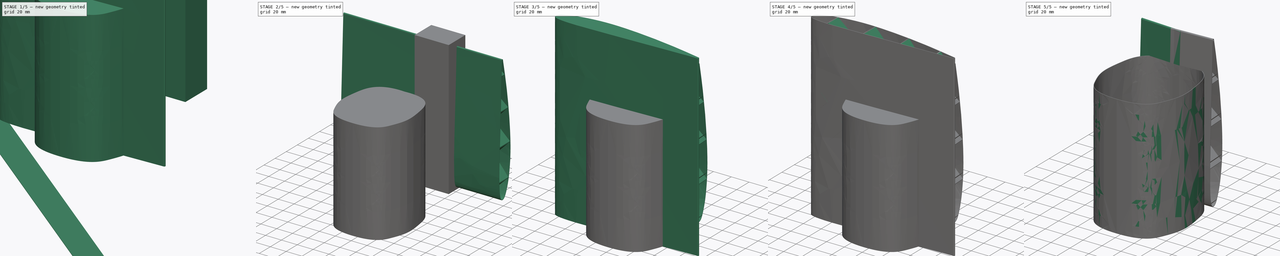
[diagram: build sequence overview — one tinted view per stage of 5, left to right]
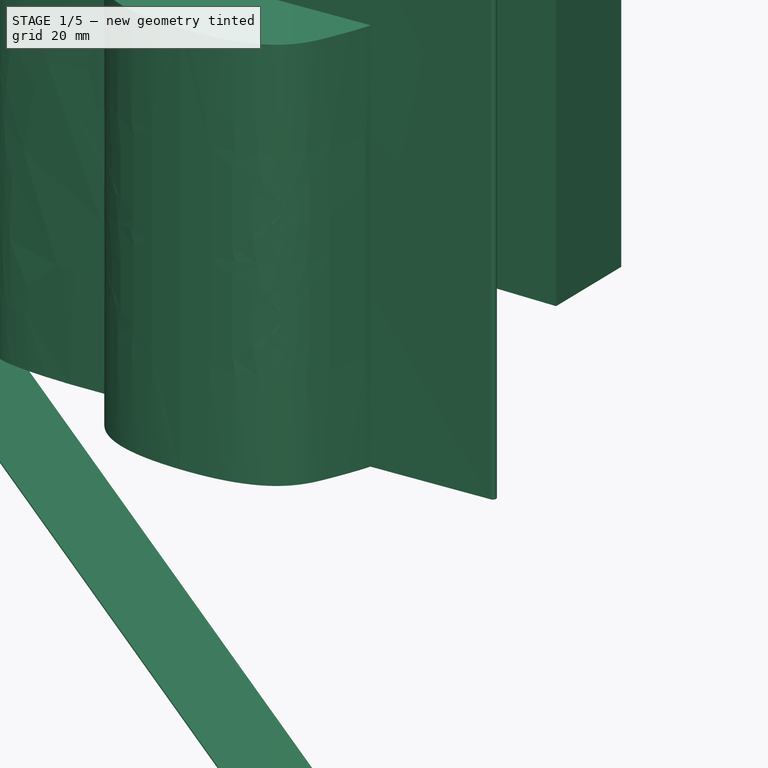
[diagram: stage 1 of 5 — iso view after this stage's code; geometry added in this stage tinted green]
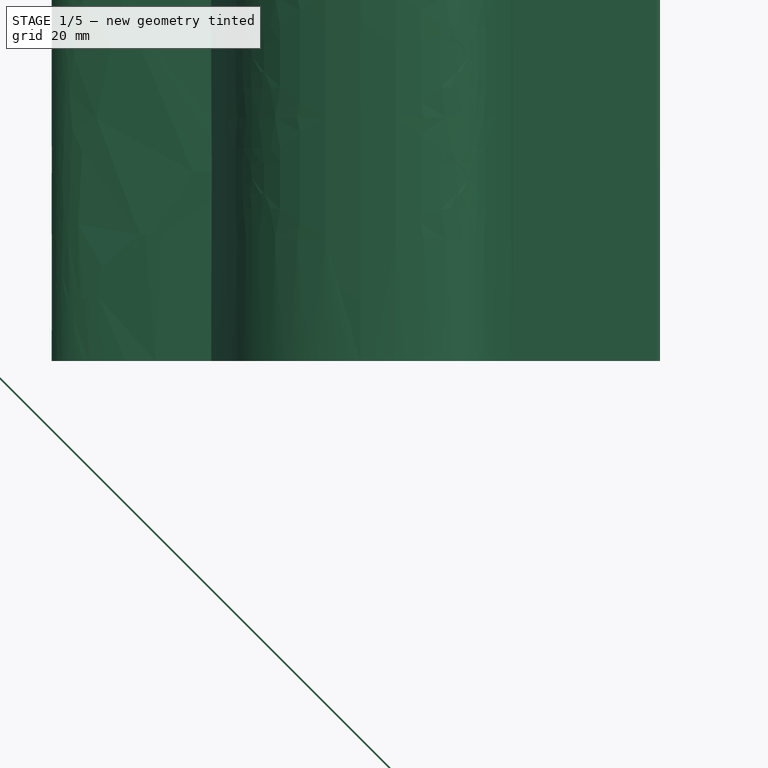
[diagram: stage 1 of 5 — front view after this stage's code; geometry added in this stage tinted green]
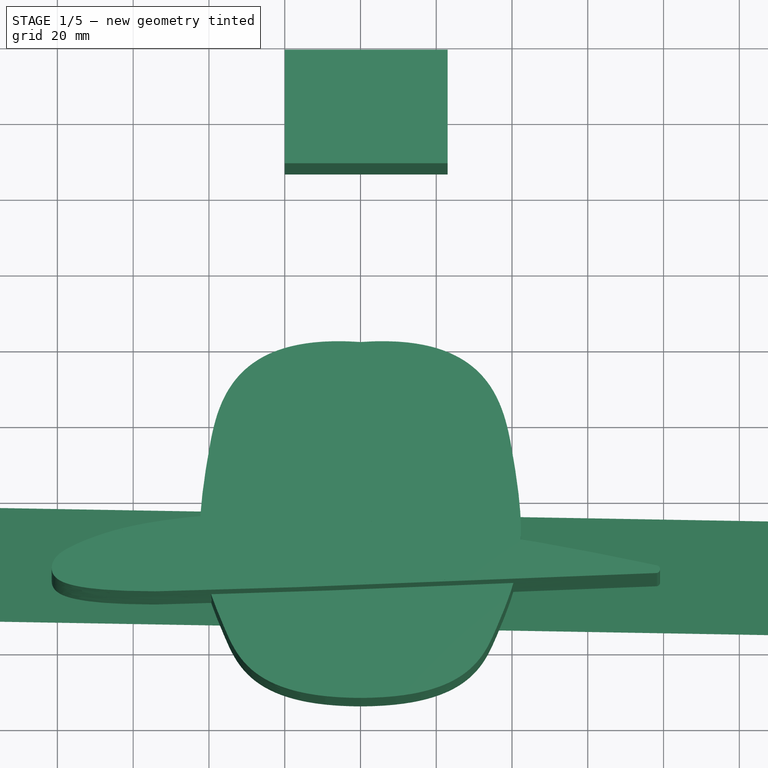
[diagram: stage 1 of 5 — top view after this stage's code; geometry added in this stage tinted green]
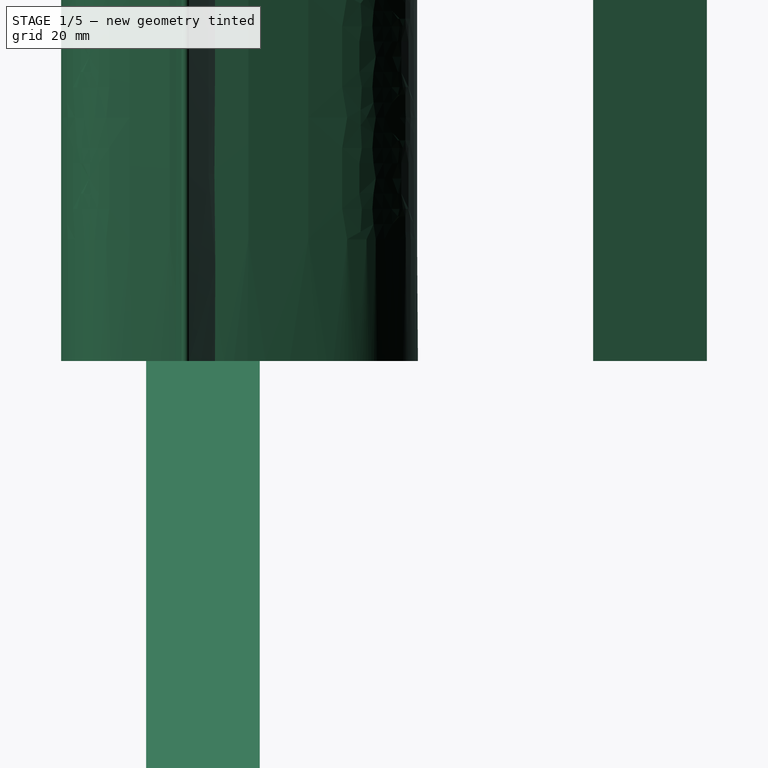
[diagram: stage 1 of 5 — right view after this stage's code; geometry added in this stage tinted green]
FCSTD DOCUMENT  (FreeCAD 0.21R33668 +26 (Git))
Label: gondole
License: All rights reserved
LicenseURL: http://en.wikipedia.org/wiki/All_rights_reserved
objects: Sketcher::SketchObject×9, PartDesign::Pad×9, PartDesign::Body×7, Part::Box×6, Part::FeaturePython×6, Part::MultiCommon×6, Part::MultiFuse×5, PartDesign::Thickness×3, Part::Cut×2, Image::ImagePlane×1
note: 59 computed .brp shape members not serialized (recipe doc carries the construction recipe); baked Part::Feature solids carry a one-line shape summary decoded from their .brp

FEATURE [PartDesign::Body] Body
  Group = -> [Sketch,Pad,Thickness]
  Origin = -> Origin
  Tip = -> Thickness
FEATURE [Part::Box] Box  label="Cube"
  AttacherType = Attacher::AttachEngine3D
  Height = 0.4
  Length = 300
  Placement = pos=(-100,-15,0) rot=(0,1,0;0.785398rad)
  Width = 30
FEATURE [Sketcher::SketchObject] Sketch001
  FullyConstrained = false
  MapMode = 5
  Support = -> [XY_Plane001]
  sketch-geometry (30):
    g0: ArcOfCircle CenterX=78.0455 CenterY=-4.69261 CenterZ=0 NormalX=0 NormalY=0 NormalZ=1 AngleXU=0 Radius=0.633228 StartAngle=4.68069 EndAngle=7.80443
    g1-g15: Circle x15 (B-spline internal-alignment scaffolding for g16; pole/knot coordinates omitted)
    g16: BSplineCurve PolesCount=15 KnotsCount=13 Degree=3 IsPeriodic=0
    g17-g29: GeomPoint x13 (B-spline internal-alignment scaffolding for g16; pole/knot coordinates omitted)
  constraints (6):
    c: Weight(g1) = 1
    c: Coincident(g16,g0)
    c: Equal(g1, g2-g15) x14
    c: Coincident(g16,g0)
    c: InternalAlignment(g1-g15 -> g16) x15
    c: InternalAlignment(g17-g29 -> g16) x13
FEATURE [PartDesign::Pad] Pad001
  Direction = (0,0,1)
  Length = 200
  Length2 = 10
  Profile = -> Sketch001
  Type = 0
FEATURE [Sketcher::SketchObject] Sketch002
  FullyConstrained = false
  MapMode = 5
  Support = -> [XY_Plane002]
  sketch-geometry (30):
    g0: ArcOfCircle CenterX=78.0455 CenterY=-4.69261 CenterZ=0 NormalX=0 NormalY=0 NormalZ=1 AngleXU=0 Radius=0.633228 StartAngle=4.68069 EndAngle=7.80443
    g1-g15: Circle x15 (B-spline internal-alignment scaffolding for g16; pole/knot coordinates omitted)
    g16: BSplineCurve PolesCount=15 KnotsCount=13 Degree=3 IsPeriodic=0
    g17-g29: GeomPoint x13 (B-spline internal-alignment scaffolding for g16; pole/knot coordinates omitted)
  constraints (6):
    c: Weight(g1) = 1
    c: Coincident(g16,g0)
    c: Equal(g1, g2-g15) x14
    c: Coincident(g16,g0)
    c: InternalAlignment(g1-g15 -> g16) x15
    c: InternalAlignment(g17-g29 -> g16) x13
FEATURE [PartDesign::Pad] Pad002
  Direction = (0,0,1)
  Length = 200
  Length2 = 10
  Profile = -> Sketch002
  Type = 0
FEATURE [Sketcher::SketchObject] Sketch003
  FullyConstrained = false
  MapMode = 5
  Support = -> [XY_Plane003]
  sketch-geometry (30):
    g0: ArcOfCircle CenterX=78.0455 CenterY=-4.69261 CenterZ=0 NormalX=0 NormalY=0 NormalZ=1 AngleXU=0 Radius=0.633228 StartAngle=4.68069 EndAngle=7.80443
    g1-g15: Circle x15 (B-spline internal-alignment scaffolding for g16; pole/knot coordinates omitted)
    g16: BSplineCurve PolesCount=15 KnotsCount=13 Degree=3 IsPeriodic=0
    g17-g29: GeomPoint x13 (B-spline internal-alignment scaffolding for g16; pole/knot coordinates omitted)
  constraints (6):
    c: Weight(g1) = 1
    c: Coincident(g16,g0)
    c: Equal(g1, g2-g15) x14
    c: Coincident(g16,g0)
    c: InternalAlignment(g1-g15 -> g16) x15
    c: InternalAlignment(g17-g29 -> g16) x13
FEATURE [PartDesign::Pad] Pad003
  Direction = (0,0,1)
  Length = 200
  Length2 = 10
  Profile = -> Sketch003
  Type = 0
FEATURE [PartDesign::Thickness] Thickness001
  Base = -> Pad001 [Face4,Face3]
  BaseFeature = -> Pad001
  Intersection = false
  Join = 0
  Mode = 1
  SupportTransform = false
  Value = 0.4
FEATURE [Part::Box] Box002  label="Cube002"
  AttacherType = Attacher::AttachEngine3D
  Height = 170
  Length = 43
  Placement = pos=(-20,103,0) rot=(0,0,1;0rad)
  Width = 30
FEATURE [Sketcher::SketchObject] Sketch008
  FullyConstrained = false
  MapMode = 5
  Support = -> [XY_Plane008]
  sketch-geometry (14):
    g0-g6: Circle x7 (B-spline internal-alignment scaffolding for g7; pole/knot coordinates omitted)
    g7: BSplineCurve PolesCount=7 KnotsCount=5 Degree=3 IsPeriodic=0
    g8-g12: GeomPoint x5 (B-spline internal-alignment scaffolding for g7; pole/knot coordinates omitted)
    g13: BSplineCurve PolesCount=7 KnotsCount=5 Degree=3 IsPeriodic=0
  constraints (12):
    c: Weight(g0) = 1
    c: PointOnObject(g7,g-2)
    c: Equal(g0,g1)
    c: Equal(g0,g2)
    c: Equal(g0,g3)
    c: PointOnObject(g3,g-1)
    c: Equal(g0,g4)
    c: Equal(g0,g5)
    c: Equal(g0,g6)
    c: PointOnObject(g7,g-2)
    c: InternalAlignment(g0-g6 -> g7) x7
    c: InternalAlignment(g8-g12 -> g7) x5
FEATURE [PartDesign::Pad] Pad008
  Direction = (0,0,1)
  Length = 128.5
  Length2 = 10
  Profile = -> Sketch008
  ReferenceAxis = -> Sketch008 [N_Axis]
  Type = 0
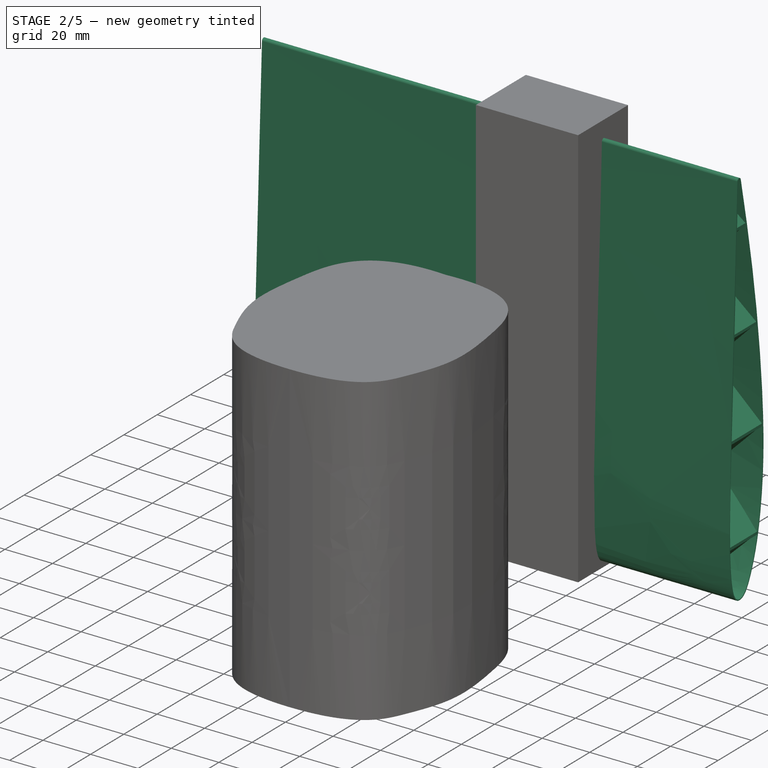
[diagram: stage 2 of 5 — iso view after this stage's code; geometry added in this stage tinted green]
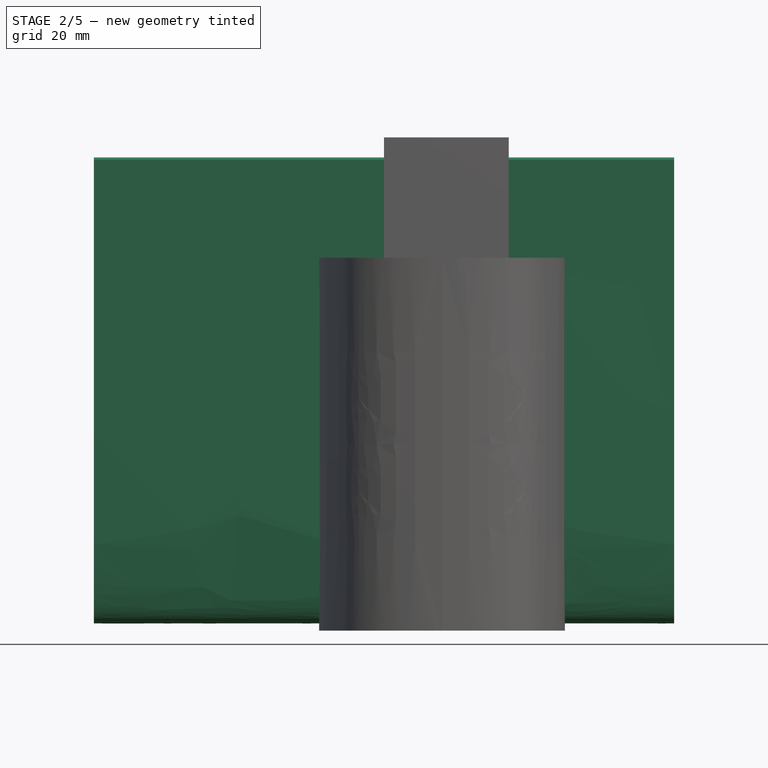
[diagram: stage 2 of 5 — front view after this stage's code; geometry added in this stage tinted green]
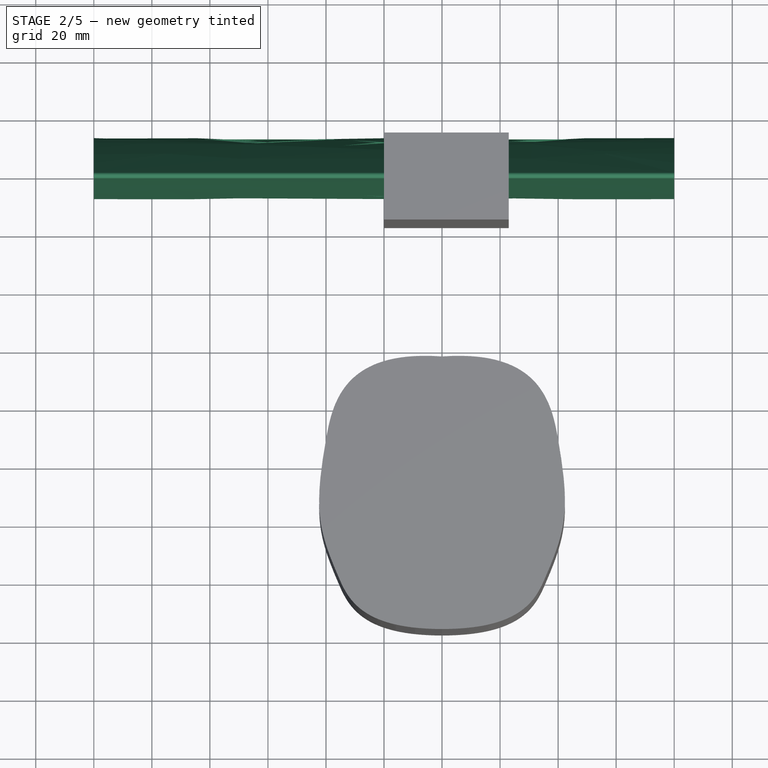
[diagram: stage 2 of 5 — top view after this stage's code; geometry added in this stage tinted green]
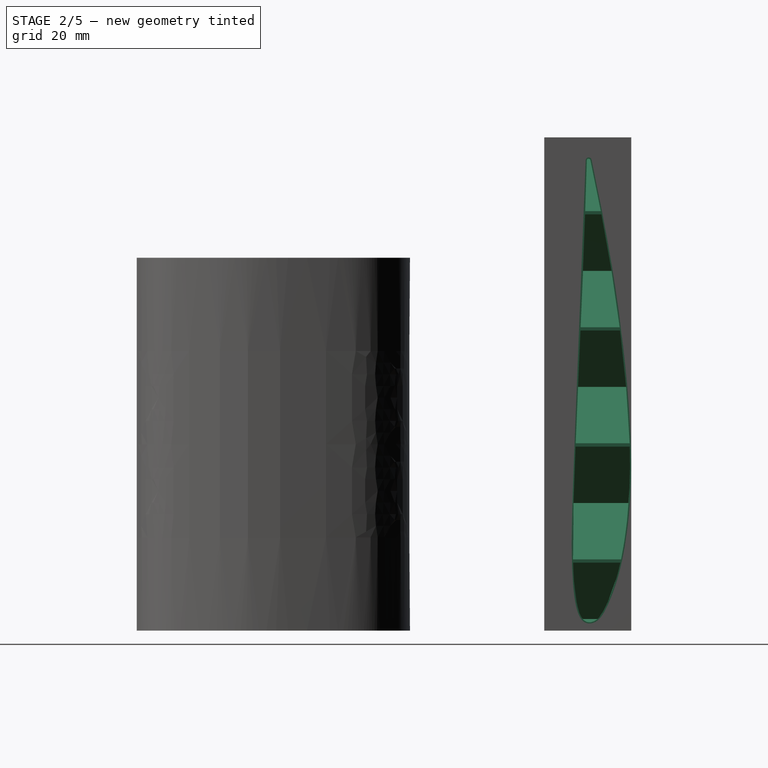
[diagram: stage 2 of 5 — right view after this stage's code; geometry added in this stage tinted green]
FEATURE [Part::FeaturePython] Array  # Draft array (typed FeaturePython)
  AlwaysSyncPlacement = false
  Angle = 360
  ArrayType = 0
  Axis = (0,0,1)
  Base = -> Box
  Center = (0,0,0)
  Count = 10
  ExpandArray = false
  Fuse = false
  IntervalAxis = (0,0,0)
  IntervalX = (100,0,0)
  IntervalY = (0,100,0)
  IntervalZ = (0,0,40)
  NumberCircles = 3
  NumberPolar = 5
  NumberX = 1
  NumberY = 1
  NumberZ = 10
  PlacementList = 10 placements: arithmetic series from (-100,-15,0) step (0,0,40) to (-100,-15,360)
  RadialDistance = 50
  ScaleList = (10) [(1,1,1),(1,1,1),(1,1,1),(1,1,1),(1,1,1),(1,1,1),(1,1,1),(1,1,1),(1,1,1),(1,1,1)]
  Symmetry = 1
  TangentialDistance = 25
FEATURE [Part::FeaturePython] Array001  # Draft array (typed FeaturePython)
  AlwaysSyncPlacement = false
  Angle = 360
  ArrayType = 0
  Axis = (0,0,1)
  Base = -> Array
  Center = (0,0,0)
  Count = 9
  ExpandArray = false
  Fuse = false
  IntervalAxis = (0,0,0)
  IntervalX = (100,0,0)
  IntervalY = (0,100,0)
  IntervalZ = (0,0,40)
  NumberCircles = 3
  NumberPolar = 5
  NumberX = 1
  NumberY = 1
  NumberZ = 9
  PlacementList = 9 placements: arithmetic series from (0,0,0) step (0,0,40) to (0,0,320)
  RadialDistance = 50
  ScaleList = (9) [(1,1,1),(1,1,1),(1,1,1),(1,1,1),(1,1,1),(1,1,1),(1,1,1),(1,1,1),(1,1,1)]
  Symmetry = 1
  TangentialDistance = 25
FEATURE [Part::Box] Box001  label="Cube001"
  AttacherType = Attacher::AttachEngine3D
  Height = 0.4
  Length = 300
  Placement = pos=(-100,-15,0) rot=(0,-1,0;0.785398rad)
  Width = 30
FEATURE [Part::FeaturePython] Array002  # Draft array (typed FeaturePython)
  AlwaysSyncPlacement = false
  Angle = 360
  ArrayType = 0
  Axis = (0,0,1)
  Base = -> Box001
  Center = (0,0,0)
  Count = 20
  ExpandArray = false
  Fuse = false
  IntervalAxis = (0,0,0)
  IntervalX = (100,0,0)
  IntervalY = (0,100,0)
  IntervalZ = (0,0,40)
  NumberCircles = 3
  NumberPolar = 5
  NumberX = 1
  NumberY = 1
  NumberZ = 20
  Placement = pos=(0,1.90735e-05,-160) rot=(0,0,1;0rad)
  PlacementList = 20 placements: arithmetic series from (-100,-15,0) step (0,0,40) to (-100,-15,760)
  RadialDistance = 50
  ScaleList = (20) [(1,1,1),(1,1,1),(1,1,1),(1,1,1),(1,1,1),(1,1,1),(1,1,1),(1,1,1),(1,1,1),(1,1,1),(1,1,1),(1,1,1),(1,1,1),(1,1,1),(1,1,1),(1,1,1),(1,1,1),(1,1,1),(1,1,1),(1,1,1)]
  Symmetry = 1
  TangentialDistance = 25
FEATURE [PartDesign::Body] Body002
  Group = -> [Sketch002,Pad002]
  Origin = -> Origin002
  Tip = -> Pad002
FEATURE [Part::MultiCommon] Common001
  Shapes = -> [Body002,Array001]
FEATURE [PartDesign::Body] Body003
  Group = -> [Sketch003,Pad003]
  Origin = -> Origin003
  Tip = -> Pad003
FEATURE [Part::MultiCommon] Common
  Shapes = -> [Body003,Array002]
FEATURE [Part::MultiFuse] Fusion
  Shapes = -> [Common001,Common]
FEATURE [PartDesign::Body] Body001
  Group = -> [Sketch001,Pad001,Thickness001]
  Origin = -> Origin001
  Tip = -> Thickness001
FEATURE [Part::MultiFuse] Fusion001
  Placement = pos=(80,123,84) rot=(0,1,0;4.71239rad)
  Shapes = -> [Body001,Fusion]
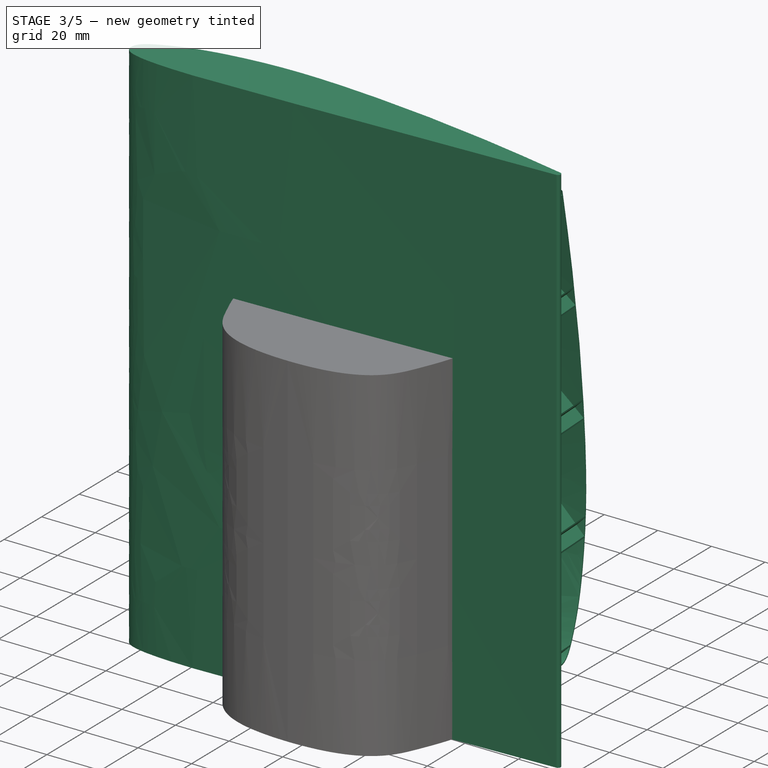
[diagram: stage 3 of 5 — iso view after this stage's code; geometry added in this stage tinted green]
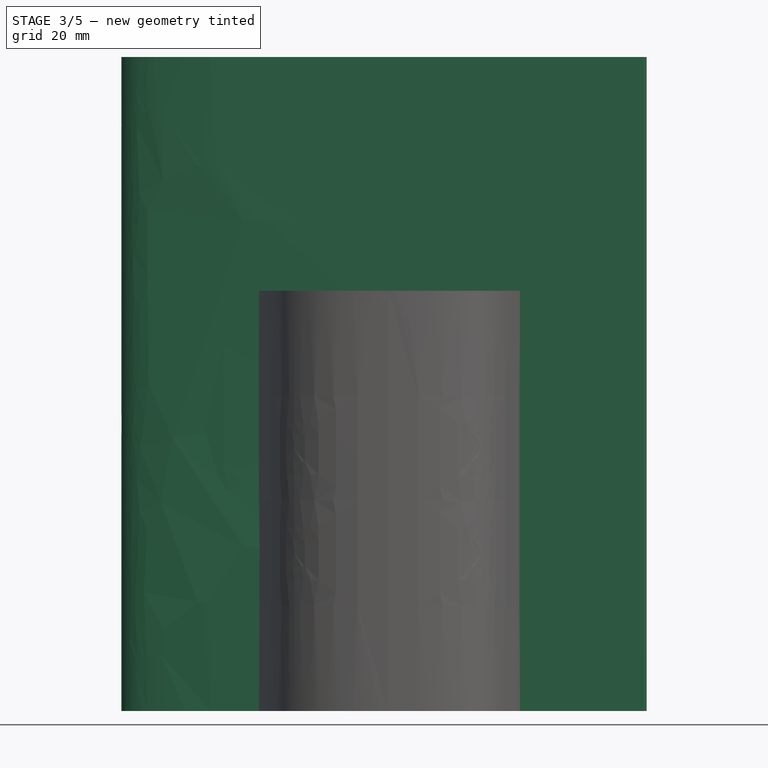
[diagram: stage 3 of 5 — front view after this stage's code; geometry added in this stage tinted green]
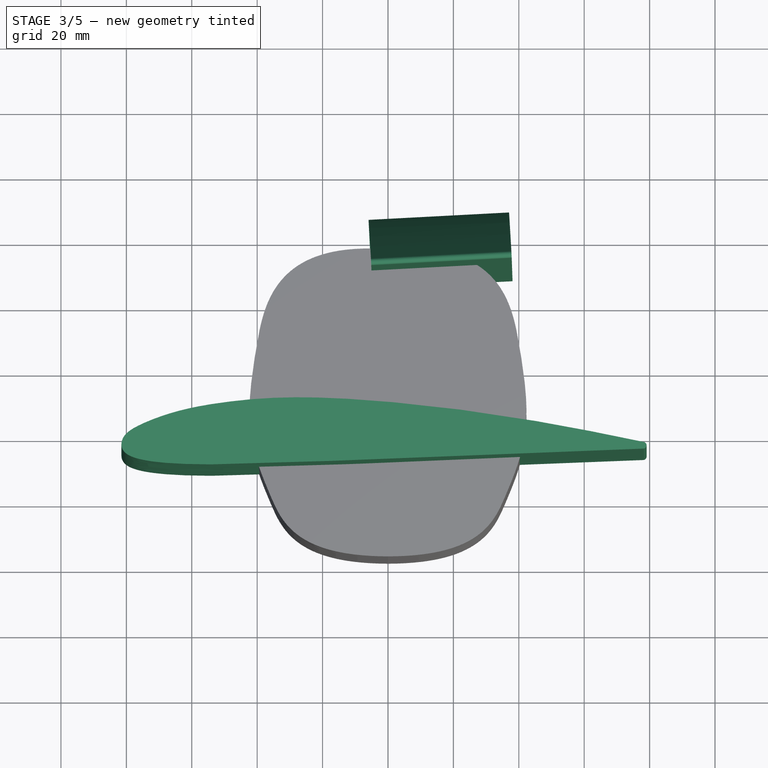
[diagram: stage 3 of 5 — top view after this stage's code; geometry added in this stage tinted green]
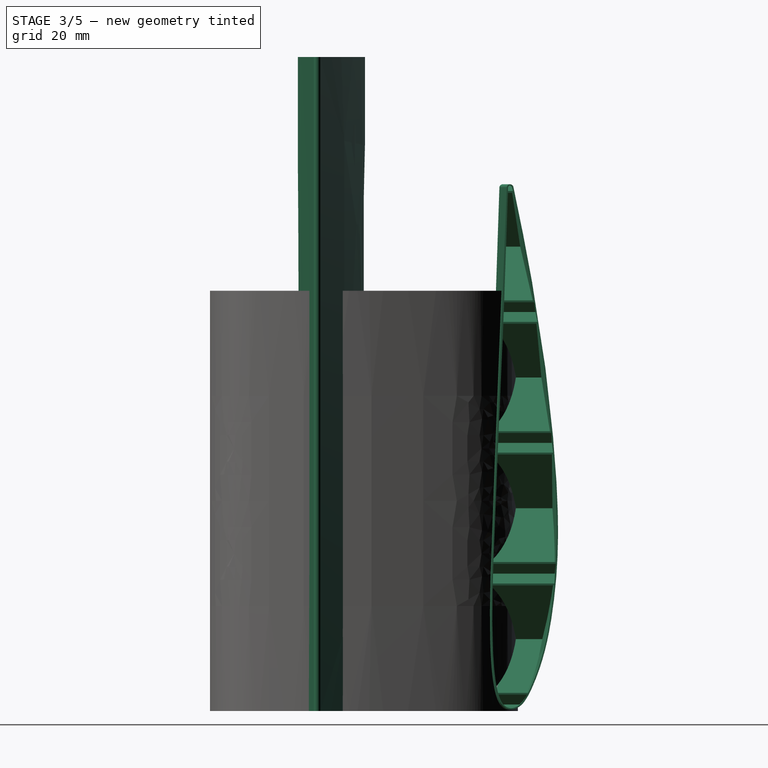
[diagram: stage 3 of 5 — right view after this stage's code; geometry added in this stage tinted green]
FEATURE [Part::MultiCommon] Common002
  Placement = pos=(21,-65,-2) rot=(0,0,1;0.05236rad)
  Shapes = -> [Box002,Fusion001]
FEATURE [Sketcher::SketchObject] Sketch004
  FullyConstrained = false
  MapMode = 5
  Support = -> [XY_Plane004]
  sketch-geometry (30):
    g0: ArcOfCircle CenterX=78.0455 CenterY=-4.69261 CenterZ=0 NormalX=0 NormalY=0 NormalZ=1 AngleXU=0 Radius=0.633228 StartAngle=4.68069 EndAngle=7.80443
    g1-g15: Circle x15 (B-spline internal-alignment scaffolding for g16; pole/knot coordinates omitted)
    g16: BSplineCurve PolesCount=15 KnotsCount=13 Degree=3 IsPeriodic=0
    g17-g29: GeomPoint x13 (B-spline internal-alignment scaffolding for g16; pole/knot coordinates omitted)
  constraints (6):
    c: Weight(g1) = 1
    c: Coincident(g16,g0)
    c: Equal(g1, g2-g15) x14
    c: Coincident(g16,g0)
    c: InternalAlignment(g1-g15 -> g16) x15
    c: InternalAlignment(g17-g29 -> g16) x13
FEATURE [PartDesign::Pad] Pad004
  Direction = (0,0,1)
  Length = 200
  Length2 = 10
  Profile = -> Sketch004
  Type = 0
FEATURE [Sketcher::SketchObject] Sketch005
  FullyConstrained = false
  MapMode = 5
  Support = -> [XY_Plane005]
  sketch-geometry (30):
    g0: ArcOfCircle CenterX=78.0455 CenterY=-4.69261 CenterZ=0 NormalX=0 NormalY=0 NormalZ=1 AngleXU=0 Radius=0.633228 StartAngle=4.68069 EndAngle=7.80443
    g1-g15: Circle x15 (B-spline internal-alignment scaffolding for g16; pole/knot coordinates omitted)
    g16: BSplineCurve PolesCount=15 KnotsCount=13 Degree=3 IsPeriodic=0
    g17-g29: GeomPoint x13 (B-spline internal-alignment scaffolding for g16; pole/knot coordinates omitted)
  constraints (6):
    c: Weight(g1) = 1
    c: Coincident(g16,g0)
    c: Equal(g1, g2-g15) x14
    c: Coincident(g16,g0)
    c: InternalAlignment(g1-g15 -> g16) x15
    c: InternalAlignment(g17-g29 -> g16) x13
FEATURE [PartDesign::Pad] Pad005
  Direction = (0,0,1)
  Length = 200
  Length2 = 10
  Profile = -> Sketch005
  Type = 0
FEATURE [Sketcher::SketchObject] Sketch006
  FullyConstrained = false
  MapMode = 5
  Support = -> [XY_Plane006]
  sketch-geometry (30):
    g0: ArcOfCircle CenterX=78.0455 CenterY=-4.69261 CenterZ=0 NormalX=0 NormalY=0 NormalZ=1 AngleXU=0 Radius=0.633228 StartAngle=4.68069 EndAngle=7.80443
    g1-g15: Circle x15 (B-spline internal-alignment scaffolding for g16; pole/knot coordinates omitted)
    g16: BSplineCurve PolesCount=15 KnotsCount=13 Degree=3 IsPeriodic=0
    g17-g29: GeomPoint x13 (B-spline internal-alignment scaffolding for g16; pole/knot coordinates omitted)
  constraints (6):
    c: Weight(g1) = 1
    c: Coincident(g16,g0)
    c: Equal(g1, g2-g15) x14
    c: Coincident(g16,g0)
    c: InternalAlignment(g1-g15 -> g16) x15
    c: InternalAlignment(g17-g29 -> g16) x13
FEATURE [PartDesign::Pad] Pad006
  Direction = (0,0,1)
  Length = 200
  Length2 = 10
  Profile = -> Sketch006
  Type = 0
FEATURE [PartDesign::Thickness] Thickness002
  Base = -> Pad004 [Face4,Face3]
  BaseFeature = -> Pad004
  Intersection = false
  Join = 0
  Mode = 1
  SupportTransform = false
  Value = 0.4
FEATURE [Sketcher::SketchObject] Sketch007
  FullyConstrained = false
  MapMode = 5
  Support = -> [XY_Plane007]
  sketch-geometry (14):
    g0-g6: Circle x7 (B-spline internal-alignment scaffolding for g7; pole/knot coordinates omitted)
    g7: BSplineCurve PolesCount=7 KnotsCount=5 Degree=3 IsPeriodic=0
    g8-g12: GeomPoint x5 (B-spline internal-alignment scaffolding for g7; pole/knot coordinates omitted)
    g13: BSplineCurve PolesCount=7 KnotsCount=5 Degree=3 IsPeriodic=0
  constraints (12):
    c: Weight(g0) = 1
    c: PointOnObject(g7,g-2)
    c: Equal(g0,g1)
    c: Equal(g0,g2)
    c: Equal(g0,g3)
    c: PointOnObject(g3,g-1)
    c: Equal(g0,g4)
    c: Equal(g0,g5)
    c: Equal(g0,g6)
    c: PointOnObject(g7,g-2)
    c: InternalAlignment(g0-g6 -> g7) x7
    c: InternalAlignment(g8-g12 -> g7) x5
FEATURE [PartDesign::Pad] Pad007
  Direction = (0,0,1)
  Length = 128.5
  Length2 = 10
  Profile = -> Sketch007
  ReferenceAxis = -> Sketch007 [N_Axis]
  Type = 0
FEATURE [Part::Cut] Cut001
  Base = -> Common002
  Tool = -> Pad008
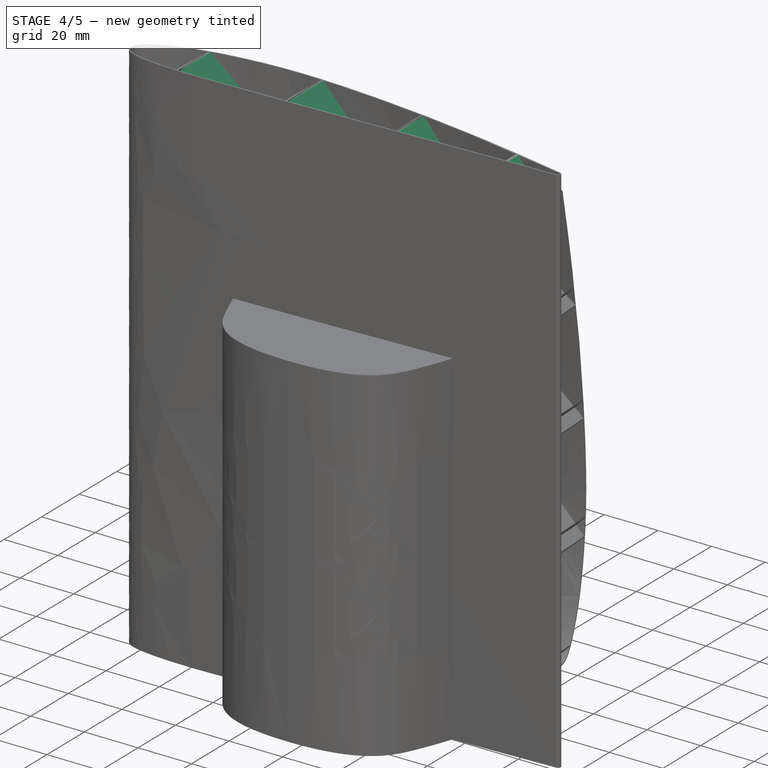
[diagram: stage 4 of 5 — iso view after this stage's code; geometry added in this stage tinted green]
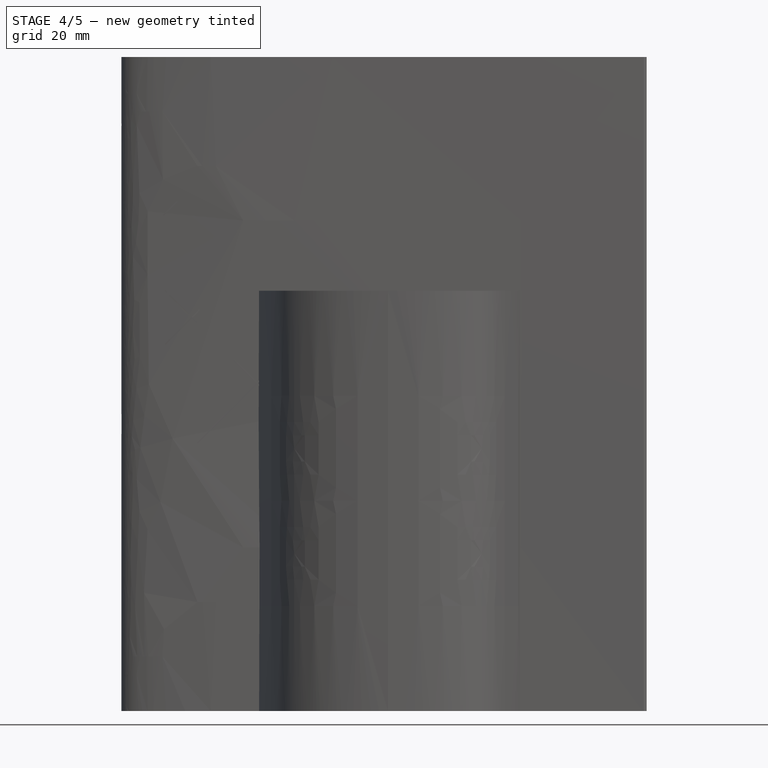
[diagram: stage 4 of 5 — front view after this stage's code; geometry added in this stage tinted green]
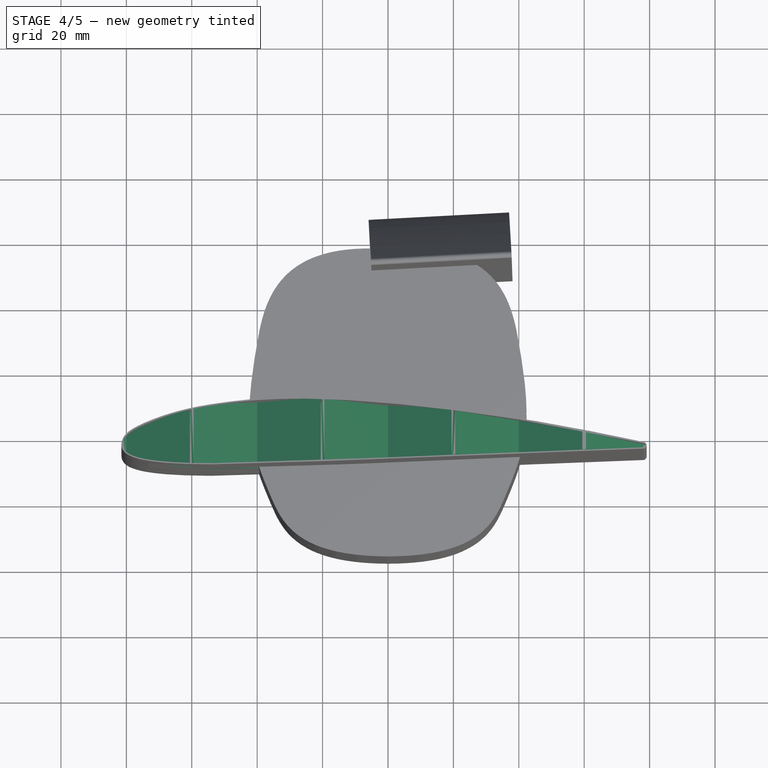
[diagram: stage 4 of 5 — top view after this stage's code; geometry added in this stage tinted green]
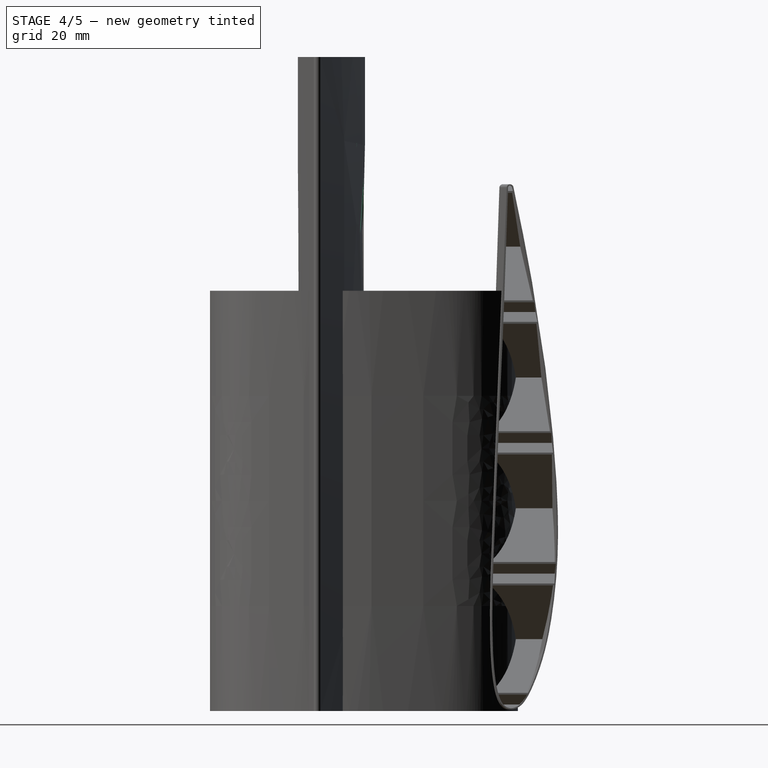
[diagram: stage 4 of 5 — right view after this stage's code; geometry added in this stage tinted green]
FEATURE [Part::Box] Box003  label="Cube003"
  AttacherType = Attacher::AttachEngine3D
  Height = 0.4
  Length = 300
  Placement = pos=(-100,-15,0) rot=(0,1,0;0.785398rad)
  Width = 30
FEATURE [Part::FeaturePython] Array003  # Draft array (typed FeaturePython)
  AlwaysSyncPlacement = false
  Angle = 360
  ArrayType = 0
  Axis = (0,0,1)
  Base = -> Box003
  Center = (0,0,0)
  Count = 10
  ExpandArray = false
  Fuse = false
  IntervalAxis = (0,0,0)
  IntervalX = (100,0,0)
  IntervalY = (0,100,0)
  IntervalZ = (0,0,40)
  NumberCircles = 3
  NumberPolar = 5
  NumberX = 1
  NumberY = 1
  NumberZ = 10
  PlacementList = 10 placements: arithmetic series from (-100,-15,0) step (0,0,40) to (-100,-15,360)
  RadialDistance = 50
  ScaleList = (10) [(1,1,1),(1,1,1),(1,1,1),(1,1,1),(1,1,1),(1,1,1),(1,1,1),(1,1,1),(1,1,1),(1,1,1)]
  Symmetry = 1
  TangentialDistance = 25
FEATURE [Part::FeaturePython] Array004  # Draft array (typed FeaturePython)
  AlwaysSyncPlacement = false
  Angle = 360
  ArrayType = 0
  Axis = (0,0,1)
  Base = -> Array003
  Center = (0,0,0)
  Count = 9
  ExpandArray = false
  Fuse = false
  IntervalAxis = (0,0,0)
  IntervalX = (100,0,0)
  IntervalY = (0,100,0)
  IntervalZ = (0,0,40)
  NumberCircles = 3
  NumberPolar = 5
  NumberX = 1
  NumberY = 1
  NumberZ = 9
  PlacementList = 9 placements: arithmetic series from (0,0,0) step (0,0,40) to (0,0,320)
  RadialDistance = 50
  ScaleList = (9) [(1,1,1),(1,1,1),(1,1,1),(1,1,1),(1,1,1),(1,1,1),(1,1,1),(1,1,1),(1,1,1)]
  Symmetry = 1
  TangentialDistance = 25
FEATURE [Part::Box] Box004  label="Cube004"
  AttacherType = Attacher::AttachEngine3D
  Height = 0.4
  Length = 300
  Placement = pos=(-100,-15,0) rot=(0,-1,0;0.785398rad)
  Width = 30
FEATURE [Part::FeaturePython] Array005  # Draft array (typed FeaturePython)
  AlwaysSyncPlacement = false
  Angle = 360
  ArrayType = 0
  Axis = (0,0,1)
  Base = -> Box004
  Center = (0,0,0)
  Count = 20
  ExpandArray = false
  Fuse = false
  IntervalAxis = (0,0,0)
  IntervalX = (100,0,0)
  IntervalY = (0,100,0)
  IntervalZ = (0,0,40)
  NumberCircles = 3
  NumberPolar = 5
  NumberX = 1
  NumberY = 1
  NumberZ = 20
  Placement = pos=(0,1.90735e-05,-160) rot=(0,0,1;0rad)
  PlacementList = 20 placements: arithmetic series from (-100,-15,0) step (0,0,40) to (-100,-15,760)
  RadialDistance = 50
  ScaleList = (20) [(1,1,1),(1,1,1),(1,1,1),(1,1,1),(1,1,1),(1,1,1),(1,1,1),(1,1,1),(1,1,1),(1,1,1),(1,1,1),(1,1,1),(1,1,1),(1,1,1),(1,1,1),(1,1,1),(1,1,1),(1,1,1),(1,1,1),(1,1,1)]
  Symmetry = 1
  TangentialDistance = 25
FEATURE [PartDesign::Body] Body005
  Group = -> [Sketch005,Pad005]
  Origin = -> Origin005
  Tip = -> Pad005
FEATURE [Part::MultiCommon] Common004
  Shapes = -> [Body005,Array004]
FEATURE [PartDesign::Body] Body006
  Group = -> [Sketch006,Pad006]
  Origin = -> Origin006
  Tip = -> Pad006
FEATURE [Part::MultiCommon] Common003
  Shapes = -> [Body006,Array005]
FEATURE [Part::MultiFuse] Fusion002
  Shapes = -> [Common004,Common003]
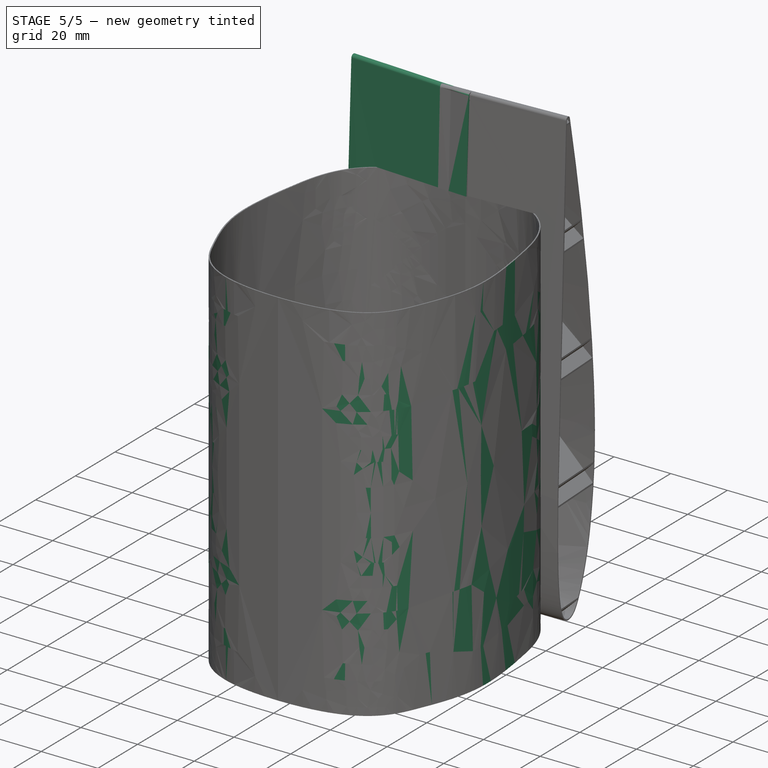
[diagram: stage 5 of 5 — iso view after this stage's code; geometry added in this stage tinted green]
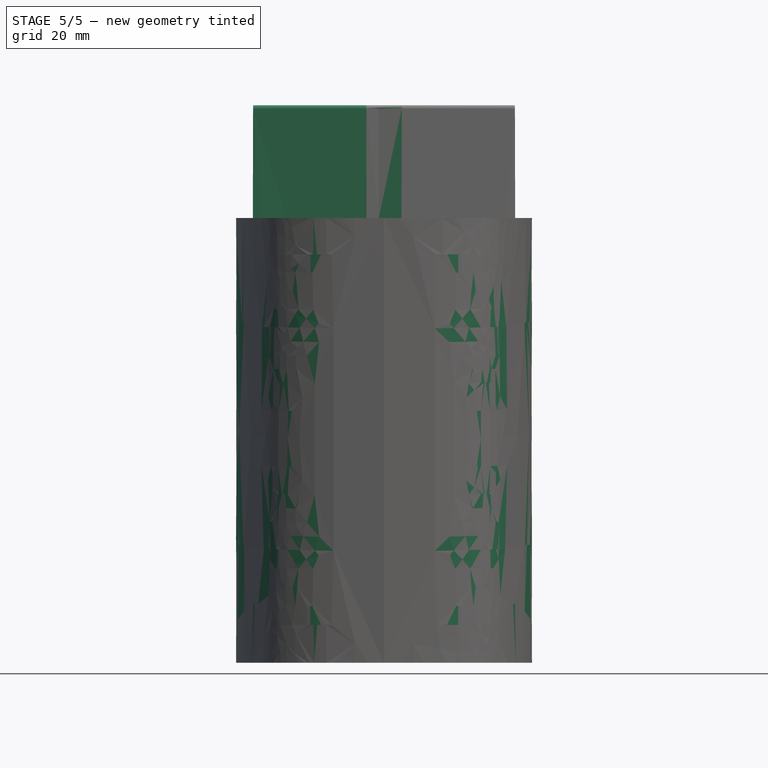
[diagram: stage 5 of 5 — front view after this stage's code; geometry added in this stage tinted green]
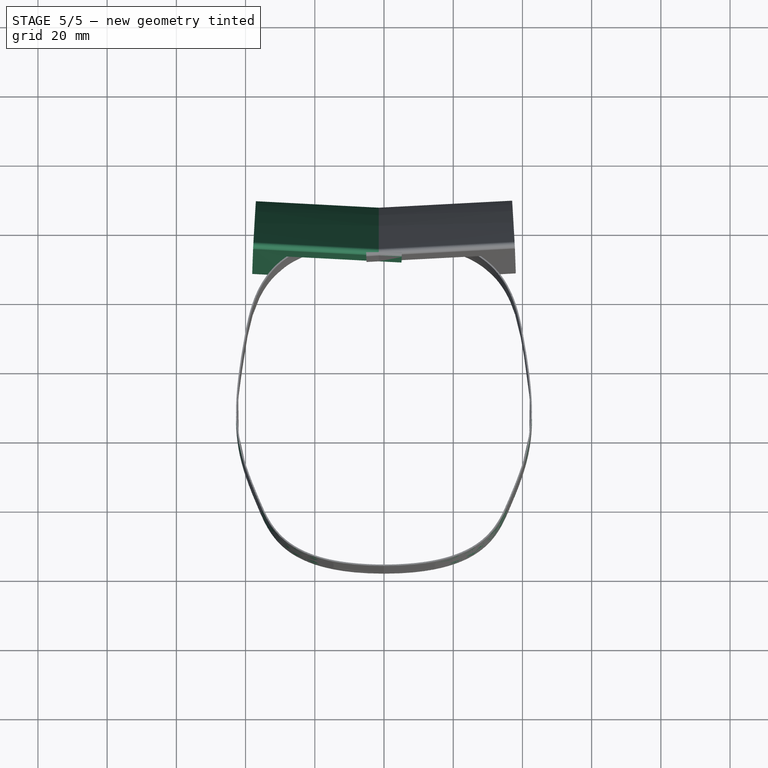
[diagram: stage 5 of 5 — top view after this stage's code; geometry added in this stage tinted green]
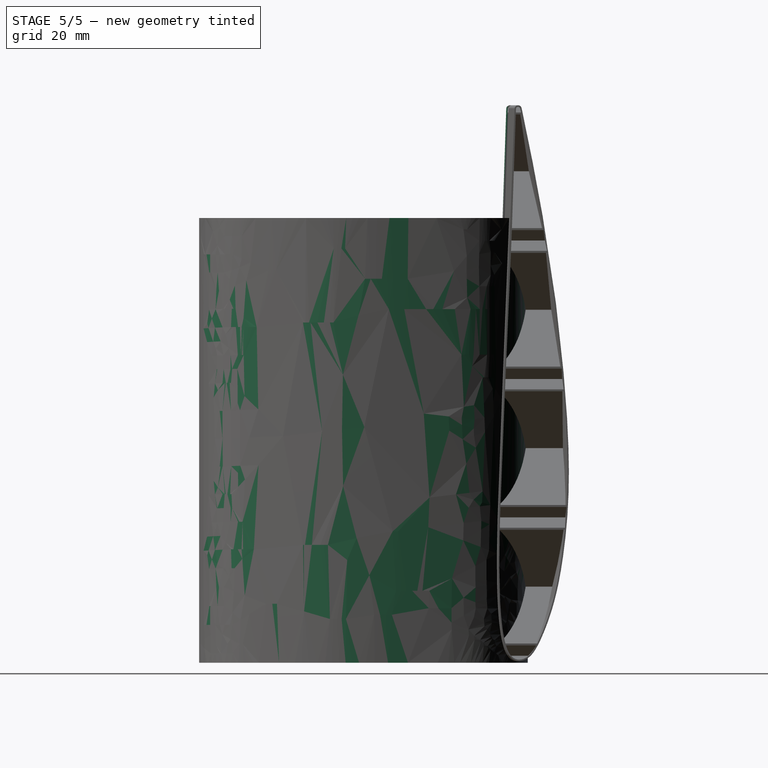
[diagram: stage 5 of 5 — right view after this stage's code; geometry added in this stage tinted green]
FEATURE [Image::ImagePlane] third
  Placement = pos=(-8,-6,0) rot=(0,0,1;0rad)
  XSize = 207.704
  YSize = 169.593
FEATURE [Sketcher::SketchObject] Sketch
  FullyConstrained = false
  MapMode = 5
  Support = -> [XY_Plane]
  sketch-geometry (14):
    g0-g6: Circle x7 (B-spline internal-alignment scaffolding for g7; pole/knot coordinates omitted)
    g7: BSplineCurve PolesCount=7 KnotsCount=5 Degree=3 IsPeriodic=0
    g8-g12: GeomPoint x5 (B-spline internal-alignment scaffolding for g7; pole/knot coordinates omitted)
    g13: BSplineCurve PolesCount=7 KnotsCount=5 Degree=3 IsPeriodic=0
  constraints (12):
    c: Weight(g0) = 1
    c: PointOnObject(g7,g-2)
    c: Equal(g0,g1)
    c: Equal(g0,g2)
    c: Equal(g0,g3)
    c: PointOnObject(g3,g-1)
    c: Equal(g0,g4)
    c: Equal(g0,g5)
    c: Equal(g0,g6)
    c: PointOnObject(g7,g-2)
    c: InternalAlignment(g0-g6 -> g7) x7
    c: InternalAlignment(g8-g12 -> g7) x5
FEATURE [PartDesign::Pad] Pad
  Direction = (0,0,1)
  Length = 128.5
  Length2 = 10
  Profile = -> Sketch
  ReferenceAxis = -> Sketch [N_Axis]
  Type = 0
FEATURE [PartDesign::Thickness] Thickness
  Base = -> Pad [Face4,Face3]
  BaseFeature = -> Pad
  Intersection = false
  Join = 0
  Mode = 0
  SupportTransform = false
  Value = 0.4
FEATURE [Part::Box] Box005  label="Cube005"
  AttacherType = Attacher::AttachEngine3D
  Height = 170
  Length = 43
  Placement = pos=(-20,103,0) rot=(0,0,1;0rad)
  Width = 30
FEATURE [PartDesign::Body] Body004
  Group = -> [Sketch004,Pad004,Thickness002]
  Origin = -> Origin004
  Tip = -> Thickness002
FEATURE [Part::MultiFuse] Fusion003
  Placement = pos=(80,123,84) rot=(0,-1,0;1.5708rad)
  Shapes = -> [Body004,Fusion002]
FEATURE [Part::MultiCommon] Common005
  Placement = pos=(-24,-65,-2) rot=(0,0,1;6.23083rad)
  Shapes = -> [Box005,Fusion003]
FEATURE [Part::Cut] Cut
  Base = -> Common005
  Tool = -> Pad007
FEATURE [Part::MultiFuse] Fusion004
  Shapes = -> [Cut,Cut001,Body]
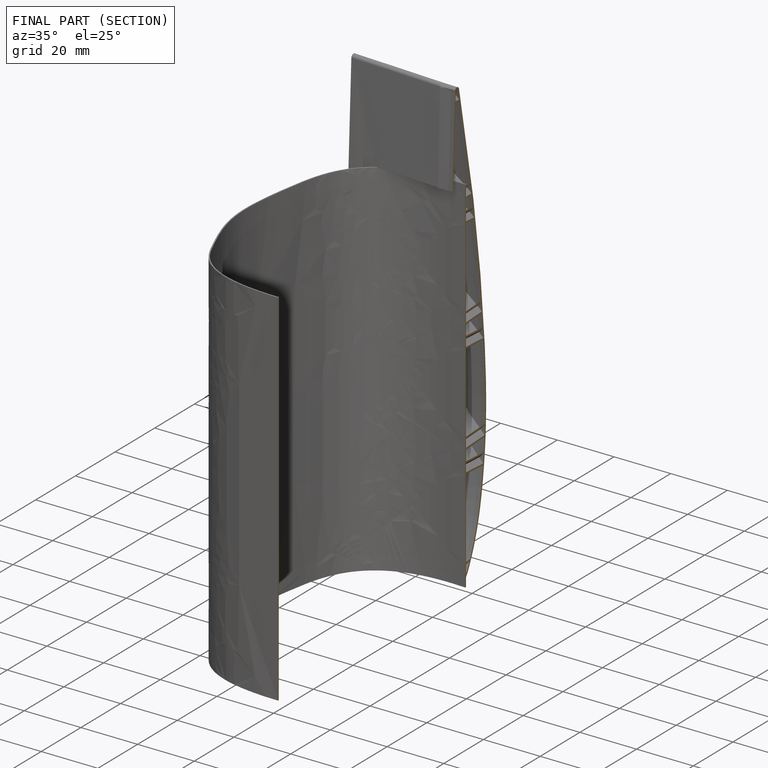
[diagram: finished part — half-section view (interior)]
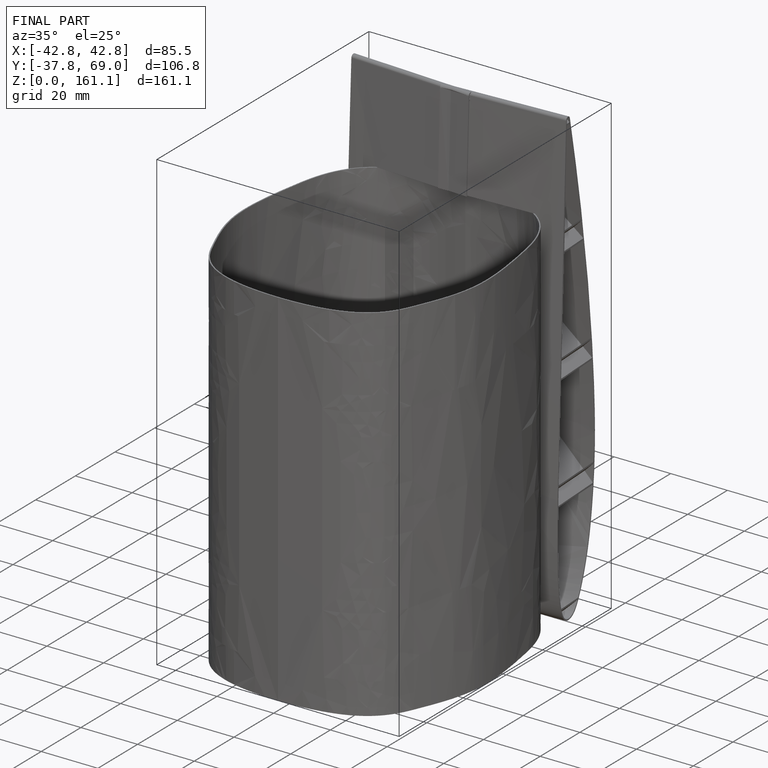
[diagram: finished part — iso view with bounding-box wireframe]
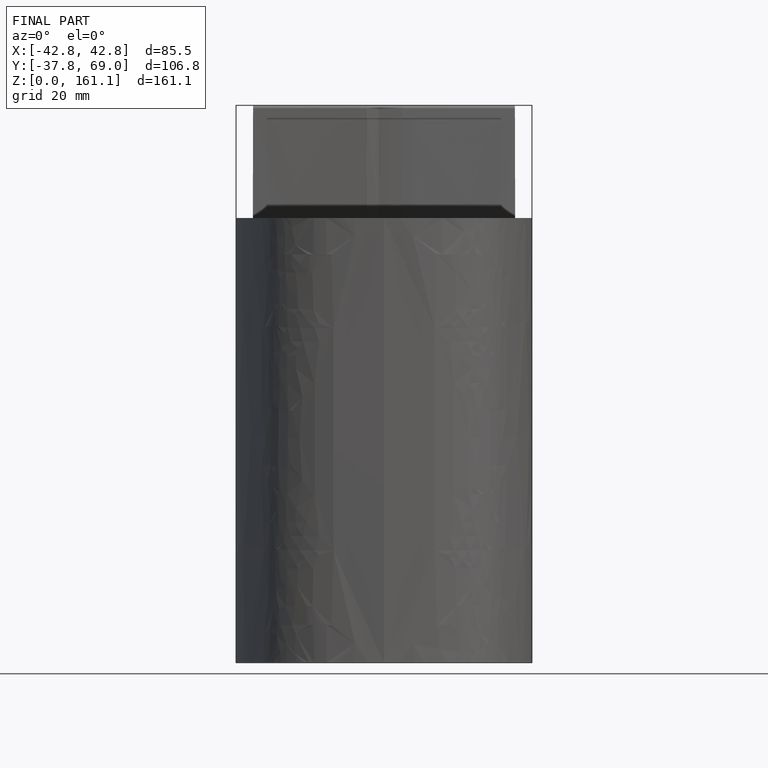
[diagram: finished part — front view with bounding-box wireframe]
